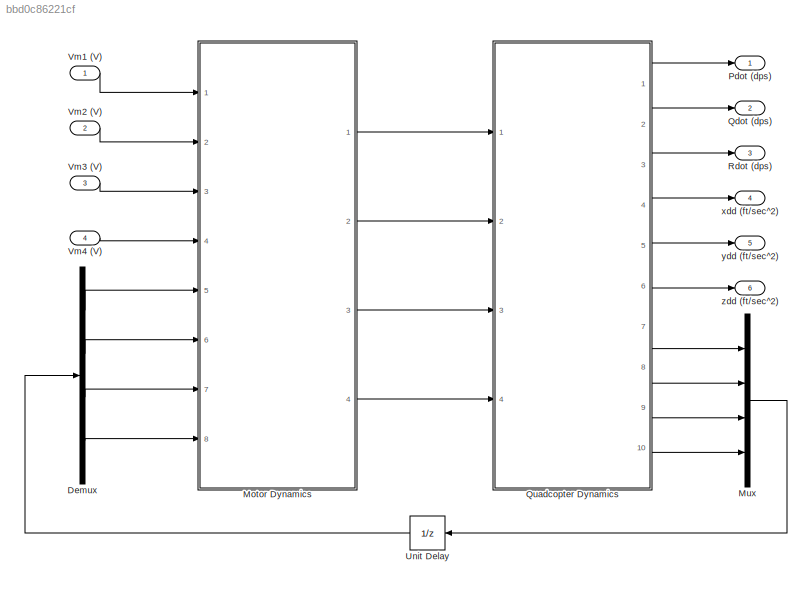
MODEL slx_bbd0c86221cf
KIND model
CONFIG AbsTol = auto
CONFIG FixedStep = auto
CONFIG MaxStep = auto
CONFIG MinStep = auto
CONFIG RelTol = 1e-3
CONFIG SampleTimeConstraint = Unconstrained
CONFIG Solver = ode45
CONFIG SolverMode = SingleTasking
CONFIG SolverName = ode45
CONFIG StartTime = 0.0
CONFIG StopTime = 10.0
BLOCK [Demux] Demux
  DisplayOption = bar
  Ports = [1, 4]
BLOCK [ModelReference] Motor Dynamics
  CopyOfModelName = quadcopter_dynamics.slx
  ModelNameDialog = motor_dynamics.slx
  ModelReferenceVersion = 1.6
  Ports = [8, 4]
  Variant = off
BLOCK [Mux] Mux
  DisplayOption = bar
  Ports = [4, 1]
BLOCK [Outport] Pdot (dps)
  IconDisplay = Port number
BLOCK [Outport] Qdot (dps)
  IconDisplay = Port number
  Port = 2
BLOCK [ModelReference] Quadcopter Dynamics
  CopyOfModelName = quadcopter_dynamics.slx
  ModelNameDialog = quadcopter_dynamics.slx
  ModelReferenceVersion = 1.1
  Ports = [4, 10]
  Variant = off
BLOCK [Outport] Rdot (dps)
  IconDisplay = Port number
  Port = 3
BLOCK [UnitDelay] Unit Delay
  InputProcessing = Elements as channels (sample based)
  SampleTime = -1
BLOCK [Inport] Vm1 (V)
  IconDisplay = Port number
BLOCK [Inport] Vm2 (V)
  IconDisplay = Port number
  Port = 2
BLOCK [Inport] Vm3 (V)
  IconDisplay = Port number
  Port = 3
BLOCK [Inport] Vm4 (V)
  IconDisplay = Port number
  Port = 4
BLOCK [Outport] xdd (ft//sec^2)
  IconDisplay = Port number
  Port = 4
BLOCK [Outport] ydd (ft//sec^2)
  IconDisplay = Port number
  Port = 5
BLOCK [Outport] zdd (ft//sec^2)
  IconDisplay = Port number
  Port = 6
LINE Demux:1 -> Motor Dynamics:5
LINE Demux:2 -> Motor Dynamics:6
LINE Demux:3 -> Motor Dynamics:7
LINE Demux:4 -> Motor Dynamics:8
LINE Motor Dynamics:1 -> Quadcopter Dynamics:1
LINE Motor Dynamics:2 -> Quadcopter Dynamics:2
LINE Motor Dynamics:3 -> Quadcopter Dynamics:3
LINE Motor Dynamics:4 -> Quadcopter Dynamics:4
LINE Mux:1 -> Unit Delay:1
LINE Quadcopter Dynamics:1 -> Pdot (dps):1
LINE Quadcopter Dynamics:10 -> Mux:4
LINE Quadcopter Dynamics:2 -> Qdot (dps):1
LINE Quadcopter Dynamics:3 -> Rdot (dps):1
LINE Quadcopter Dynamics:4 -> xdd (ft//sec^2):1
LINE Quadcopter Dynamics:5 -> ydd (ft//sec^2):1
LINE Quadcopter Dynamics:6 -> zdd (ft//sec^2):1
LINE Quadcopter Dynamics:7 -> Mux:1
LINE Quadcopter Dynamics:8 -> Mux:2
LINE Quadcopter Dynamics:9 -> Mux:3
LINE Unit Delay:1 -> Demux:1
LINE Vm1 (V):1 -> Motor Dynamics:1
LINE Vm2 (V):1 -> Motor Dynamics:2
LINE Vm3 (V):1 -> Motor Dynamics:3
LINE Vm4 (V):1 -> Motor Dynamics:4
